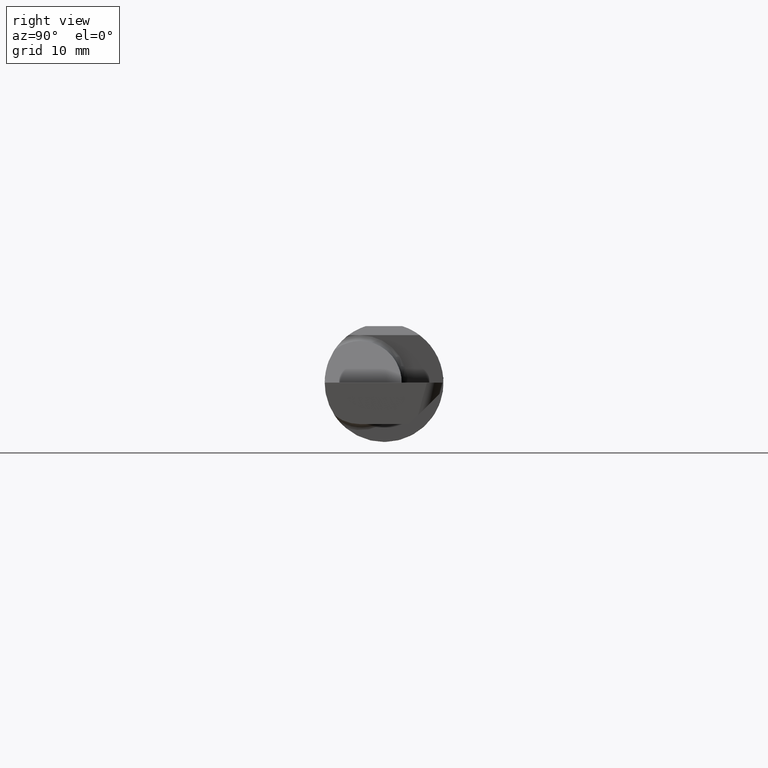
[diagram: clean part render]
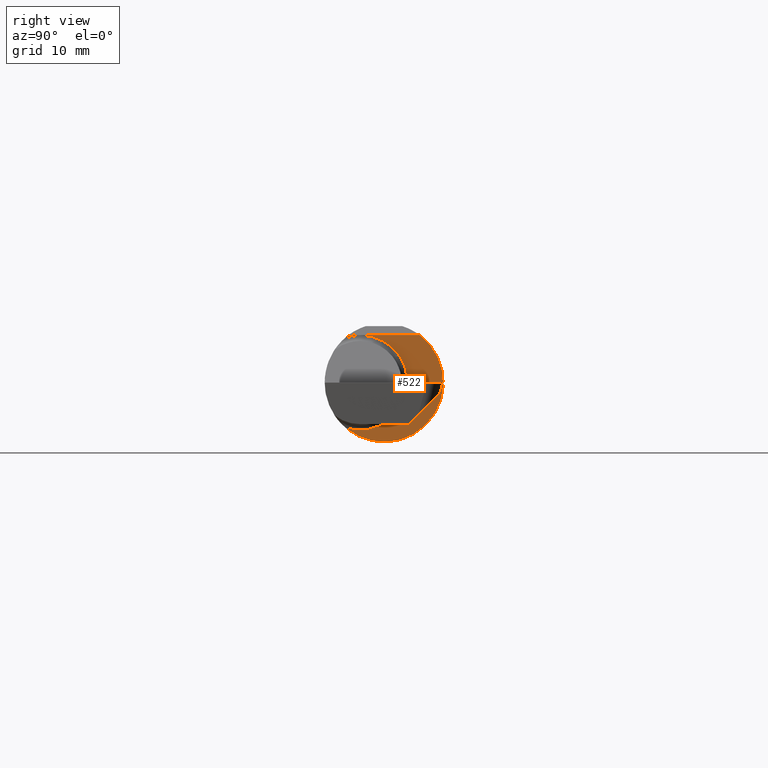
[diagram: same view with one face highlighted and labeled with its STEP entity id]
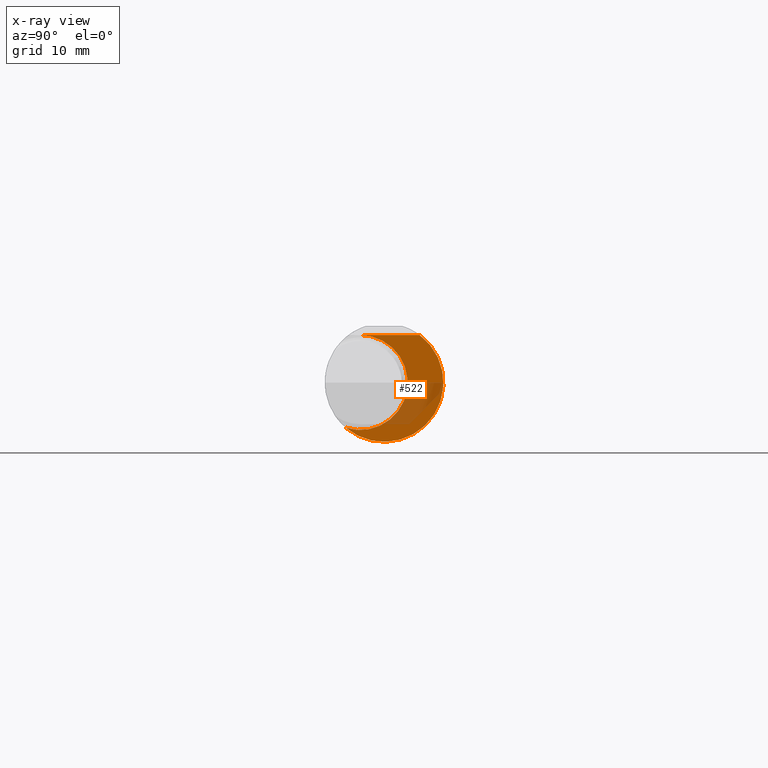
[diagram: x-ray of the same camera — body ghosted, the highlighted face saturated]
A machine part, right view. The second image highlights one B-rep face of the part: STEP entity #522.
The next image is the same camera in x-ray: the body ghosted, the highlighted face saturated — about 28% of this face is hidden behind the body in this view.
In plain terms, the highlighted planar face has unit normal (1, 0, 0).
Its self-contained STEP definition (entity closure, byte-faithful):
#17 = ORIENTED_EDGE ( 'NONE', *, *, #58, .T. ) ;
#41 = VERTEX_POINT ( 'NONE', #729 ) ;
#48 = AXIS2_PLACEMENT_3D ( 'NONE', #679, #237, #419 ) ;
#58 = EDGE_CURVE ( 'NONE', #41, #689, #561, .T. ) ;
#67 = DIRECTION ( 'NONE',  ( 0.000000000000000000, 1.000000000000000000, 0.000000000000000000 ) ) ;
#92 = CARTESIAN_POINT ( 'NONE',  ( 2.450000000000000178, 0.1497498664440163330, 0.1999999999999982903 ) ) ;
#102 = CARTESIAN_POINT ( 'NONE',  ( 2.450000000000000178, -0.1008500000000001895, 0.1999999999999982070 ) ) ;
#237 = DIRECTION ( 'NONE',  ( 1.000000000000000000, 2.820234929918045414E-16, 0.000000000000000000 ) ) ;
#278 = LINE ( 'NONE', #460, #789 ) ;
#283 = DIRECTION ( 'NONE',  ( -1.000000000000000000, -2.820234929918045414E-16, -0.000000000000000000 ) ) ;
#297 = FACE_OUTER_BOUND ( 'NONE', #382, .T. ) ;
#358 = DIRECTION ( 'NONE',  ( 1.000000000000000000, 2.820234929918045414E-16, 0.000000000000000000 ) ) ;
#381 = EDGE_CURVE ( 'NONE', #410, #41, #721, .T. ) ;
#382 = EDGE_LOOP ( 'NONE', ( #17, #506, #720 ) ) ;
#410 = VERTEX_POINT ( 'NONE', #102 ) ;
#419 = DIRECTION ( 'NONE',  ( -2.820234929918045414E-16, 1.000000000000000000, 0.000000000000000000 ) ) ;
#460 = CARTESIAN_POINT ( 'NONE',  ( 2.450000000000000178, -0.2500000000000001110, 0.1999999999999981792 ) ) ;
#497 = CARTESIAN_POINT ( 'NONE',  ( 2.450000000000000178, 0.000000000000000000, 0.000000000000000000 ) ) ;
#506 = ORIENTED_EDGE ( 'NONE', *, *, #710, .T. ) ;
#522 = ADVANCED_FACE ( 'NONE', ( #297 ), #540, .T. ) ;
#536 = AXIS2_PLACEMENT_3D ( 'NONE', #497, #358, #67 ) ;
#540 = PLANE ( 'NONE',  #48 ) ;
#561 = CIRCLE ( 'NONE', #536, 0.2498499999999999888 ) ;
#573 = DIRECTION ( 'NONE',  ( 2.820234929918045414E-16, -1.000000000000000000, -2.820234929918016325E-16 ) ) ;
#649 = CARTESIAN_POINT ( 'NONE',  ( 2.450000000000000178, -0.1008500000000001340, 0.000000000000000000 ) ) ;
#679 = CARTESIAN_POINT ( 'NONE',  ( 2.450000000000000178, 0.2498499999999999333, 0.000000000000000000 ) ) ;
#689 = VERTEX_POINT ( 'NONE', #92 ) ;
#694 = AXIS2_PLACEMENT_3D ( 'NONE', #649, #283, #705 ) ;
#705 = DIRECTION ( 'NONE',  ( 0.000000000000000000, -1.000000000000000000, 0.000000000000000000 ) ) ;
#710 = EDGE_CURVE ( 'NONE', #689, #410, #278, .T. ) ;
#720 = ORIENTED_EDGE ( 'NONE', *, *, #381, .T. ) ;
#721 = CIRCLE ( 'NONE', #694, 0.2000000000000001221 ) ;
#729 = CARTESIAN_POINT ( 'NONE',  ( 2.450000000000000178, -0.1616050818046600723, -0.1905487340154983222 ) ) ;
#789 = VECTOR ( 'NONE', #573, 39.37007874015748143 ) ;